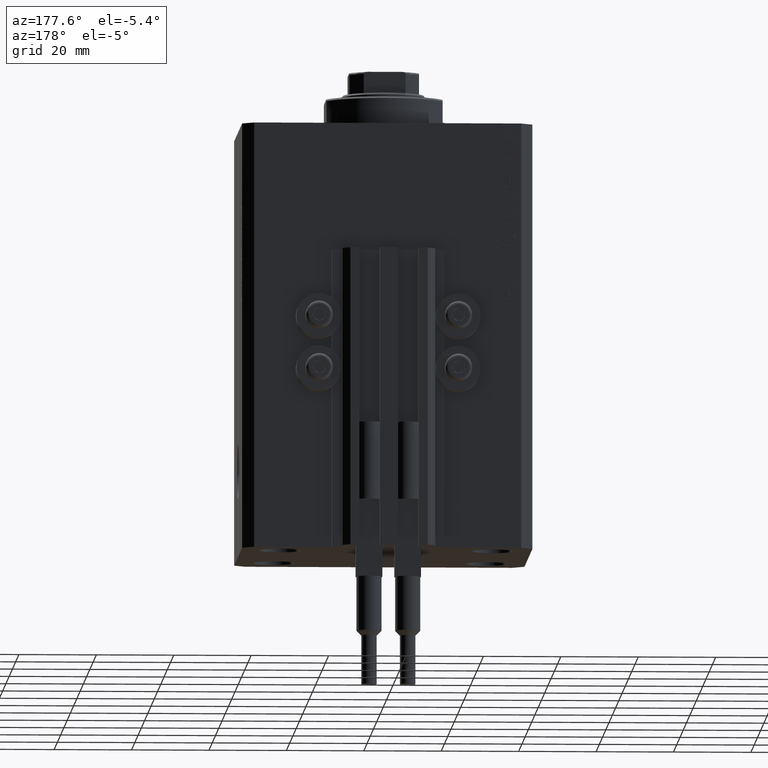
[diagram: clean part render]
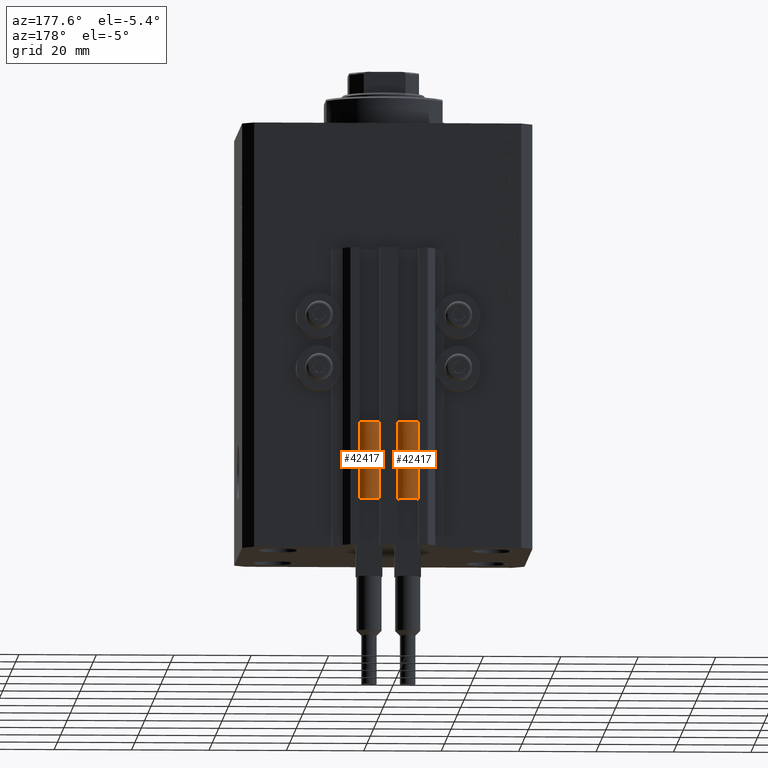
[diagram: same view with one multi-face feature highlighted, each face labeled with its STEP entity id]
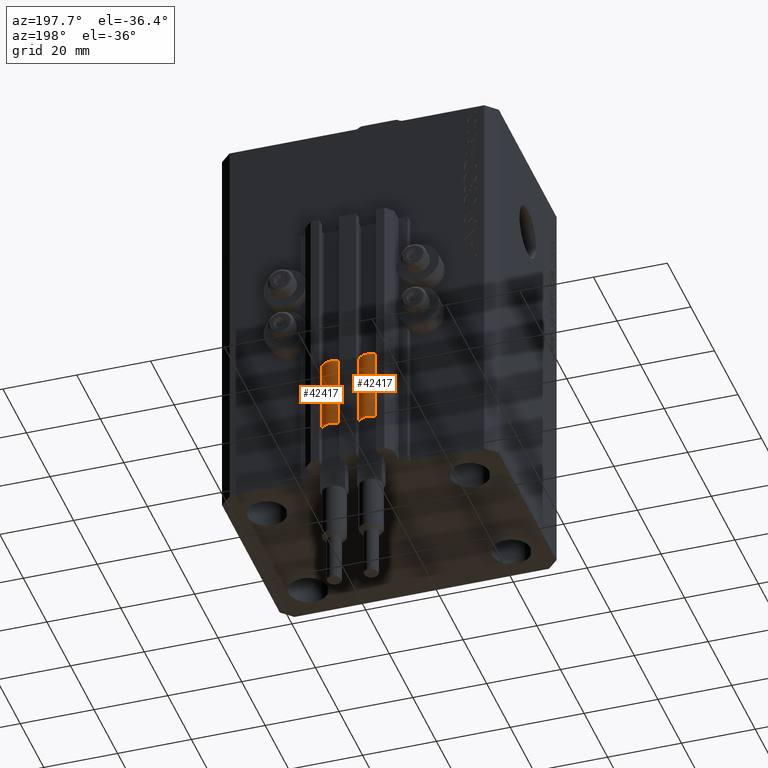
[diagram: same view with one multi-face feature highlighted, each face labeled with its STEP entity id]
A machine part, auxiliary view. The highlighted faces form ONE feature: a constant-radius fillet chain: 2 tangent blend faces with common blend radius 3.4 mm. The faces share edges in the B-rep.
A second angle (auxiliary view) of the same feature is appended — it is thin or edge-on in the first view.
Their STEP definitions:
[1] entity #42417 (Cylinder):
#575 = DIRECTION ( 'NONE',  ( 0.000000000000000000, 0.000000000000000000, 1.000000000000000000 ) ) ;
#1000 = AXIS2_PLACEMENT_3D ( 'NONE', #11521, #575, #4932 ) ;
#2546 = VECTOR ( 'NONE', #47784, 1000.000000000000000 ) ;
#3189 = DIRECTION ( 'NONE',  ( -0.000000000000000000, -0.000000000000000000, -1.000000000000000000 ) ) ;
#3443 = CARTESIAN_POINT ( 'NONE',  ( 3.400000000000000355, 4.163799117101001052E-16, 20.00000000000000000 ) ) ;
#4044 = ORIENTED_EDGE ( 'NONE', *, *, #21055, .F. ) ;
#4930 = CIRCLE ( 'NONE', #32051, 3.400000000000000355 ) ;
#4932 = DIRECTION ( 'NONE',  ( 1.000000000000000000, 0.000000000000000000, 0.000000000000000000 ) ) ;
#5855 = AXIS2_PLACEMENT_3D ( 'NONE', #31187, #17337, #43104 ) ;
#6084 = CARTESIAN_POINT ( 'NONE',  ( 3.400000000000000355, 4.163799117101001052E-16, 0.000000000000000000 ) ) ;
#7437 = VECTOR ( 'NONE', #3189, 1000.000000000000000 ) ;
#7467 = LINE ( 'NONE', #11111, #2546 ) ;
#9525 = EDGE_CURVE ( 'NONE', #10810, #35823, #7467, .T. ) ;
#10084 = CARTESIAN_POINT ( 'NONE',  ( -3.399999999999999467, -4.915049848600952119E-16, 20.00000000000000000 ) ) ;
#10564 = AXIS2_PLACEMENT_3D ( 'NONE', #25536, #32162, #13484 ) ;
#10810 = VERTEX_POINT ( 'NONE', #10084 ) ;
#10941 = CARTESIAN_POINT ( 'NONE',  ( -3.051229260478471428, -1.500000000000000000, 20.00000000000000000 ) ) ;
#11111 = CARTESIAN_POINT ( 'NONE',  ( -3.400000000000000355, 0.000000000000000000, 20.00000000000000000 ) ) ;
#11521 = CARTESIAN_POINT ( 'NONE',  ( 0.000000000000000000, 0.000000000000000000, 0.000000000000000000 ) ) ;
#12837 = CIRCLE ( 'NONE', #5855, 3.400000000000000355 ) ;
#13484 = DIRECTION ( 'NONE',  ( -1.000000000000000000, 0.000000000000000000, 0.000000000000000000 ) ) ;
#17337 = DIRECTION ( 'NONE',  ( 0.000000000000000000, 0.000000000000000000, 1.000000000000000000 ) ) ;
#19650 = DIRECTION ( 'NONE',  ( 1.000000000000000000, 0.000000000000000000, 0.000000000000000000 ) ) ;
#21055 = EDGE_CURVE ( 'NONE', #45968, #23202, #36211, .T. ) ;
#21445 = EDGE_CURVE ( 'NONE', #32075, #35246, #12837, .T. ) ;
#22303 = CARTESIAN_POINT ( 'NONE',  ( 3.051229260478471428, -1.500000000000000000, 20.00000000000000000 ) ) ;
#22731 = CIRCLE ( 'NONE', #41378, 3.400000000000000355 ) ;
#23202 = VERTEX_POINT ( 'NONE', #6084 ) ;
#23436 = DIRECTION ( 'NONE',  ( 1.000000000000000000, 0.000000000000000000, 0.000000000000000000 ) ) ;
#23533 = CARTESIAN_POINT ( 'NONE',  ( 0.000000000000000000, 0.000000000000000000, 20.00000000000000000 ) ) ;
#25536 = CARTESIAN_POINT ( 'NONE',  ( 0.000000000000000000, 0.000000000000000000, 20.00000000000000000 ) ) ;
#26778 = ORIENTED_EDGE ( 'NONE', *, *, #21445, .F. ) ;
#27873 = EDGE_CURVE ( 'NONE', #10810, #32075, #22731, .T. ) ;
#27983 = ORIENTED_EDGE ( 'NONE', *, *, #28229, .F. ) ;
#28229 = EDGE_CURVE ( 'NONE', #35246, #45968, #4930, .T. ) ;
#30453 = CIRCLE ( 'NONE', #1000, 3.400000000000000355 ) ;
#31187 = CARTESIAN_POINT ( 'NONE',  ( 0.000000000000000000, 0.000000000000000000, 20.00000000000000000 ) ) ;
#32051 = AXIS2_PLACEMENT_3D ( 'NONE', #23533, #42260, #19650 ) ;
#32075 = VERTEX_POINT ( 'NONE', #10941 ) ;
#32162 = DIRECTION ( 'NONE',  ( -0.000000000000000000, -0.000000000000000000, -1.000000000000000000 ) ) ;
#35246 = VERTEX_POINT ( 'NONE', #22303 ) ;
#35604 = EDGE_CURVE ( 'NONE', #35823, #23202, #30453, .T. ) ;
#35823 = VERTEX_POINT ( 'NONE', #36231 ) ;
#36211 = LINE ( 'NONE', #3443, #7437 ) ;
#36231 = CARTESIAN_POINT ( 'NONE',  ( -3.400000000000000355, 0.000000000000000000, 0.000000000000000000 ) ) ;
#36641 = ORIENTED_EDGE ( 'NONE', *, *, #35604, .T. ) ;
#36967 = CYLINDRICAL_SURFACE ( 'NONE', #10564, 3.400000000000000355 ) ;
#41033 = EDGE_LOOP ( 'NONE', ( #4044, #27983, #26778, #45503, #44518, #36641 ) ) ;
#41378 = AXIS2_PLACEMENT_3D ( 'NONE', #45340, #45578, #23436 ) ;
#42260 = DIRECTION ( 'NONE',  ( 0.000000000000000000, 0.000000000000000000, 1.000000000000000000 ) ) ;
#42417 = ADVANCED_FACE ( 'NONE', ( #44267 ), #36967, .T. ) ;
#43104 = DIRECTION ( 'NONE',  ( 1.000000000000000000, 0.000000000000000000, 0.000000000000000000 ) ) ;
#44267 = FACE_OUTER_BOUND ( 'NONE', #41033, .T. ) ;
#44518 = ORIENTED_EDGE ( 'NONE', *, *, #9525, .T. ) ;
#45340 = CARTESIAN_POINT ( 'NONE',  ( 0.000000000000000000, 0.000000000000000000, 20.00000000000000000 ) ) ;
#45503 = ORIENTED_EDGE ( 'NONE', *, *, #27873, .F. ) ;
#45578 = DIRECTION ( 'NONE',  ( 0.000000000000000000, 0.000000000000000000, 1.000000000000000000 ) ) ;
#45968 = VERTEX_POINT ( 'NONE', #46717 ) ;
#46717 = CARTESIAN_POINT ( 'NONE',  ( 3.400000000000000355, 0.000000000000000000, 20.00000000000000000 ) ) ;
#47784 = DIRECTION ( 'NONE',  ( -0.000000000000000000, -0.000000000000000000, -1.000000000000000000 ) ) ;
[2] entity #42417 (Cylinder):
#575 = DIRECTION ( 'NONE',  ( 0.000000000000000000, 0.000000000000000000, 1.000000000000000000 ) ) ;
#1000 = AXIS2_PLACEMENT_3D ( 'NONE', #11521, #575, #4932 ) ;
#2546 = VECTOR ( 'NONE', #47784, 1000.000000000000000 ) ;
#3189 = DIRECTION ( 'NONE',  ( -0.000000000000000000, -0.000000000000000000, -1.000000000000000000 ) ) ;
#3443 = CARTESIAN_POINT ( 'NONE',  ( 3.400000000000000355, 4.163799117101001052E-16, 20.00000000000000000 ) ) ;
#4044 = ORIENTED_EDGE ( 'NONE', *, *, #21055, .F. ) ;
#4930 = CIRCLE ( 'NONE', #32051, 3.400000000000000355 ) ;
#4932 = DIRECTION ( 'NONE',  ( 1.000000000000000000, 0.000000000000000000, 0.000000000000000000 ) ) ;
#5855 = AXIS2_PLACEMENT_3D ( 'NONE', #31187, #17337, #43104 ) ;
#6084 = CARTESIAN_POINT ( 'NONE',  ( 3.400000000000000355, 4.163799117101001052E-16, 0.000000000000000000 ) ) ;
#7437 = VECTOR ( 'NONE', #3189, 1000.000000000000000 ) ;
#7467 = LINE ( 'NONE', #11111, #2546 ) ;
#9525 = EDGE_CURVE ( 'NONE', #10810, #35823, #7467, .T. ) ;
#10084 = CARTESIAN_POINT ( 'NONE',  ( -3.399999999999999467, -4.915049848600952119E-16, 20.00000000000000000 ) ) ;
#10564 = AXIS2_PLACEMENT_3D ( 'NONE', #25536, #32162, #13484 ) ;
#10810 = VERTEX_POINT ( 'NONE', #10084 ) ;
#10941 = CARTESIAN_POINT ( 'NONE',  ( -3.051229260478471428, -1.500000000000000000, 20.00000000000000000 ) ) ;
#11111 = CARTESIAN_POINT ( 'NONE',  ( -3.400000000000000355, 0.000000000000000000, 20.00000000000000000 ) ) ;
#11521 = CARTESIAN_POINT ( 'NONE',  ( 0.000000000000000000, 0.000000000000000000, 0.000000000000000000 ) ) ;
#12837 = CIRCLE ( 'NONE', #5855, 3.400000000000000355 ) ;
#13484 = DIRECTION ( 'NONE',  ( -1.000000000000000000, 0.000000000000000000, 0.000000000000000000 ) ) ;
#17337 = DIRECTION ( 'NONE',  ( 0.000000000000000000, 0.000000000000000000, 1.000000000000000000 ) ) ;
#19650 = DIRECTION ( 'NONE',  ( 1.000000000000000000, 0.000000000000000000, 0.000000000000000000 ) ) ;
#21055 = EDGE_CURVE ( 'NONE', #45968, #23202, #36211, .T. ) ;
#21445 = EDGE_CURVE ( 'NONE', #32075, #35246, #12837, .T. ) ;
#22303 = CARTESIAN_POINT ( 'NONE',  ( 3.051229260478471428, -1.500000000000000000, 20.00000000000000000 ) ) ;
#22731 = CIRCLE ( 'NONE', #41378, 3.400000000000000355 ) ;
#23202 = VERTEX_POINT ( 'NONE', #6084 ) ;
#23436 = DIRECTION ( 'NONE',  ( 1.000000000000000000, 0.000000000000000000, 0.000000000000000000 ) ) ;
#23533 = CARTESIAN_POINT ( 'NONE',  ( 0.000000000000000000, 0.000000000000000000, 20.00000000000000000 ) ) ;
#25536 = CARTESIAN_POINT ( 'NONE',  ( 0.000000000000000000, 0.000000000000000000, 20.00000000000000000 ) ) ;
#26778 = ORIENTED_EDGE ( 'NONE', *, *, #21445, .F. ) ;
#27873 = EDGE_CURVE ( 'NONE', #10810, #32075, #22731, .T. ) ;
#27983 = ORIENTED_EDGE ( 'NONE', *, *, #28229, .F. ) ;
#28229 = EDGE_CURVE ( 'NONE', #35246, #45968, #4930, .T. ) ;
#30453 = CIRCLE ( 'NONE', #1000, 3.400000000000000355 ) ;
#31187 = CARTESIAN_POINT ( 'NONE',  ( 0.000000000000000000, 0.000000000000000000, 20.00000000000000000 ) ) ;
#32051 = AXIS2_PLACEMENT_3D ( 'NONE', #23533, #42260, #19650 ) ;
#32075 = VERTEX_POINT ( 'NONE', #10941 ) ;
#32162 = DIRECTION ( 'NONE',  ( -0.000000000000000000, -0.000000000000000000, -1.000000000000000000 ) ) ;
#35246 = VERTEX_POINT ( 'NONE', #22303 ) ;
#35604 = EDGE_CURVE ( 'NONE', #35823, #23202, #30453, .T. ) ;
#35823 = VERTEX_POINT ( 'NONE', #36231 ) ;
#36211 = LINE ( 'NONE', #3443, #7437 ) ;
#36231 = CARTESIAN_POINT ( 'NONE',  ( -3.400000000000000355, 0.000000000000000000, 0.000000000000000000 ) ) ;
#36641 = ORIENTED_EDGE ( 'NONE', *, *, #35604, .T. ) ;
#36967 = CYLINDRICAL_SURFACE ( 'NONE', #10564, 3.400000000000000355 ) ;
#41033 = EDGE_LOOP ( 'NONE', ( #4044, #27983, #26778, #45503, #44518, #36641 ) ) ;
#41378 = AXIS2_PLACEMENT_3D ( 'NONE', #45340, #45578, #23436 ) ;
#42260 = DIRECTION ( 'NONE',  ( 0.000000000000000000, 0.000000000000000000, 1.000000000000000000 ) ) ;
#42417 = ADVANCED_FACE ( 'NONE', ( #44267 ), #36967, .T. ) ;
#43104 = DIRECTION ( 'NONE',  ( 1.000000000000000000, 0.000000000000000000, 0.000000000000000000 ) ) ;
#44267 = FACE_OUTER_BOUND ( 'NONE', #41033, .T. ) ;
#44518 = ORIENTED_EDGE ( 'NONE', *, *, #9525, .T. ) ;
#45340 = CARTESIAN_POINT ( 'NONE',  ( 0.000000000000000000, 0.000000000000000000, 20.00000000000000000 ) ) ;
#45503 = ORIENTED_EDGE ( 'NONE', *, *, #27873, .F. ) ;
#45578 = DIRECTION ( 'NONE',  ( 0.000000000000000000, 0.000000000000000000, 1.000000000000000000 ) ) ;
#45968 = VERTEX_POINT ( 'NONE', #46717 ) ;
#46717 = CARTESIAN_POINT ( 'NONE',  ( 3.400000000000000355, 0.000000000000000000, 20.00000000000000000 ) ) ;
#47784 = DIRECTION ( 'NONE',  ( -0.000000000000000000, -0.000000000000000000, -1.000000000000000000 ) ) ;